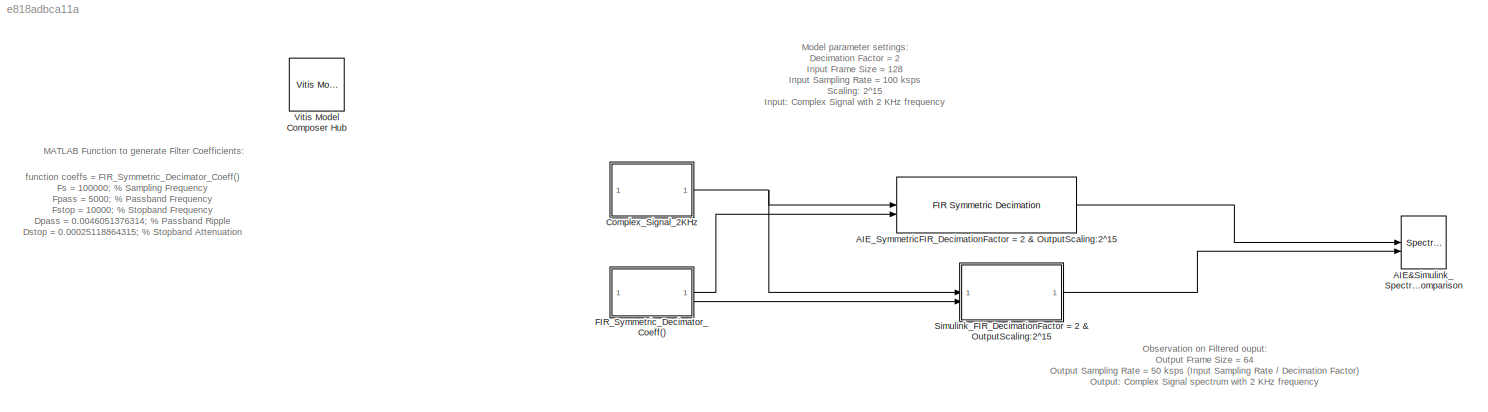
MODEL slx_e818adbca11a
KIND model
CONFIG AbsTol = auto
CONFIG EnableMultiTasking = off
CONFIG FixedStep = auto
CONFIG MaxStep = auto
CONFIG MinStep = auto
CONFIG PostLoadFcn = Fs = 100000;  % Sampling Frequency\nFpass = 5000;              % Passband Frequency\nFstop = 10000;             % Stopband Frequency\nDpass = 0.0046051376314;   % Passband Ripple\nDstop = 0.00025118864315;  % Stopband Attenuation\ndens  = 16;                % Density Factor\n% Calculate the order from the parameters using FIRPMORD.\n[N, Fo, Ao, W] = firpmord([Fpass, Fstop]/(Fs/2), [1 0], [Dpass, Dstop]);...<+93ch>
CONFIG RelTol = 1e-3
CONFIG SampleTimeConstraint = Unconstrained
CONFIG SolverName = VariableStepAuto
CONFIG StartTime = 0.0
CONFIG StopTime = 1
BLOCK [SpectrumAnalyzer] AIE&Simulink_Spectrum_Comparison
  AllowFFTLengthLessThanSamplesPerUpdate = on
  AveragingMethod = Exponential
  ChannelNames = [""]
  DefaultConfigurationName = spbscopes.SpectrumAnalyzerBlockCfg
  NumInputPorts = 2
  ScopeSpecificationString = spbscopes.SpectrumAnalyzerBlockCfg('CurrentConfiguration', extmgr.ConfigurationSet(extmgr.Configuration('Core','General UI',true,'FigureColor',[0.16        0.16        0.16]),extmgr.Configuration('Visuals','Spectrum',true,'Title','','YLabel','','MinYLim','27.0377','MaxYLim','123.9095','Legend',true,'AxesProperties',struct('XGrid',{'on','on'},'YGrid',{'on','on'},'ZGrid',{'on','on'},'Color',{[0 0 0]...<+2399ch>
  ShowLegend = on
  WasSavedAsWebScope = on
BLOCK [Reference] AIE_SymmetricFIR_DecimationFactor = 2 & OutputScaling:2^15   REF=aieDSP/FIR Symmetric Decimation
  SourceBlock = aieDSP/FIR Symmetric Decimation
  SourceType = FIR Symmetric Decimation
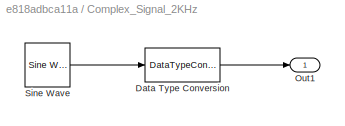
BLOCK [SubSystem] Complex_Signal_2KHz
BLOCK [DataTypeConversion] Complex_Signal_2KHz/Data Type Conversion
  ConvertRealWorld = Stored Integer (SI)
  OutDataTypeStr = int16
  OutMax = [1]
  OutMin = [-1]
  RndMeth = Floor
  SaturateOnIntegerOverflow = off
BLOCK [Outport] Complex_Signal_2KHz/Out1
BLOCK [Reference] Complex_Signal_2KHz/Sine Wave  REF=dspsrcs4/Sine Wave
  SourceBlock = dspsrcs4/Sine Wave
  SourceType = Sine Wave
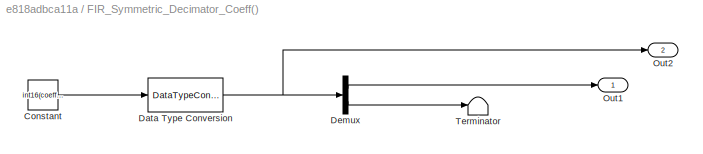
BLOCK [SubSystem] FIR_Symmetric_Decimator_Coeff()
BLOCK [Constant] FIR_Symmetric_Decimator_Coeff()/Constant
  Value = int16(coeffs*2^15)
BLOCK [DataTypeConversion] FIR_Symmetric_Decimator_Coeff()/Data Type Conversion
  ConvertRealWorld = Stored Integer (SI)
  OutDataTypeStr = int16
  OutMax = [1]
  OutMin = [-1]
  RndMeth = Floor
  SaturateOnIntegerOverflow = off
BLOCK [Demux] FIR_Symmetric_Decimator_Coeff()/Demux
  Outputs = 2
BLOCK [Outport] FIR_Symmetric_Decimator_Coeff()/Out1
BLOCK [Outport] FIR_Symmetric_Decimator_Coeff()/Out2
  Port = 2
BLOCK [Terminator] FIR_Symmetric_Decimator_Coeff()/Terminator
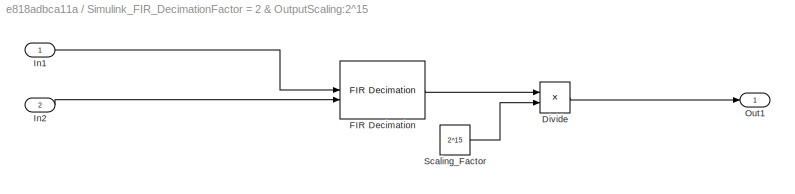
BLOCK [SubSystem] Simulink_FIR_DecimationFactor = 2 & OutputScaling:2^15
BLOCK [Product] Simulink_FIR_DecimationFactor = 2 & OutputScaling:2^15/Divide
  Inputs = */
  OutDataTypeStr = int16
BLOCK [Reference] Simulink_FIR_DecimationFactor = 2 & OutputScaling:2^15/FIR Decimation  REF=dspmlti4/FIR
Decimation
  SourceBlock = dspmlti4/FIR\nDecimation
  SourceType = FIR Decimation
  UserDataPersistent = on
BLOCK [Inport] Simulink_FIR_DecimationFactor = 2 & OutputScaling:2^15/In1
BLOCK [Inport] Simulink_FIR_DecimationFactor = 2 & OutputScaling:2^15/In2
  Port = 2
BLOCK [Outport] Simulink_FIR_DecimationFactor = 2 & OutputScaling:2^15/Out1
BLOCK [Constant] Simulink_FIR_DecimationFactor = 2 & OutputScaling:2^15/Scaling_Factor
  OutDataTypeStr = int32
  Value = 2^15
BLOCK [Reference] Vitis Model Composer Hub  REF=vmcUtilities/Vitis Model Composer Hub
  SourceBlock = vmcUtilities/Vitis Model Composer Hub
  SourceType = VMC Hub
  Tag = genX
  UserDataPersistent = on
ANNOTATION (root): function coeffs = FIR_Symmetric_Decimator_Coeff() Fs = 100000; % Sampling Frequency Fpass = 5000; % Passband Frequency Fstop = 10000; % Stopband Frequency Dpass = 0.0046051376314; % Passband Ripple Dstop = 0.00025118864315; % Stopband Attenuation dens = 16; % Density Factor % Calculate the order from the parameters using FIRPMORD. [N, Fo, Ao, W] = firpmord([Fpass, Fstop]/(Fs/2), [1 0], [Dpass, Dst...<+102ch>
ANNOTATION (root): MATLAB Function to generate Filter Coefficients:
ANNOTATION (root): Model parameter settings: Decimation Factor = 2 Input Frame Size = 128 Input Sampling Rate = 100 ksps Scaling: 2^15 Input: Complex Signal with 2 KHz frequency
ANNOTATION (root): Observation on Filtered ouput: Output Frame Size = 64 Output Sampling Rate = 50 ksps (Input Sampling Rate / Decimation Factor) Output: Complex Signal spectrum with 2 KHz frequency
LINE AIE_SymmetricFIR_DecimationFactor = 2 & OutputScaling:2^15 :1 -> AIE&Simulink_Spectrum_Comparison:1
LINE Complex_Signal_2KHz/Data Type Conversion:1 -> Complex_Signal_2KHz/Out1:1
LINE Complex_Signal_2KHz/Sine Wave:1 -> Complex_Signal_2KHz/Data Type Conversion:1
NET Complex_Signal_2KHz:1 -> AIE_SymmetricFIR_DecimationFactor = 2 & OutputScaling:2^15 :1, Simulink_FIR_DecimationFactor = 2 & OutputScaling:2^15:1
LINE FIR_Symmetric_Decimator_Coeff()/Constant:1 -> FIR_Symmetric_Decimator_Coeff()/Data Type Conversion:1
NET FIR_Symmetric_Decimator_Coeff()/Data Type Conversion:1 -> FIR_Symmetric_Decimator_Coeff()/Demux:1, FIR_Symmetric_Decimator_Coeff()/Out2:1
LINE FIR_Symmetric_Decimator_Coeff()/Demux:1 -> FIR_Symmetric_Decimator_Coeff()/Out1:1
LINE FIR_Symmetric_Decimator_Coeff()/Demux:2 -> FIR_Symmetric_Decimator_Coeff()/Terminator:1
LINE FIR_Symmetric_Decimator_Coeff():1 -> AIE_SymmetricFIR_DecimationFactor = 2 & OutputScaling:2^15 :2
LINE FIR_Symmetric_Decimator_Coeff():2 -> Simulink_FIR_DecimationFactor = 2 & OutputScaling:2^15:2
LINE Simulink_FIR_DecimationFactor = 2 & OutputScaling:2^15/Divide:1 -> Simulink_FIR_DecimationFactor = 2 & OutputScaling:2^15/Out1:1
LINE Simulink_FIR_DecimationFactor = 2 & OutputScaling:2^15/FIR Decimation:1 -> Simulink_FIR_DecimationFactor = 2 & OutputScaling:2^15/Divide:1
LINE Simulink_FIR_DecimationFactor = 2 & OutputScaling:2^15/In1:1 -> Simulink_FIR_DecimationFactor = 2 & OutputScaling:2^15/FIR Decimation:1
LINE Simulink_FIR_DecimationFactor = 2 & OutputScaling:2^15/In2:1 -> Simulink_FIR_DecimationFactor = 2 & OutputScaling:2^15/FIR Decimation:2
LINE Simulink_FIR_DecimationFactor = 2 & OutputScaling:2^15/Scaling_Factor:1 -> Simulink_FIR_DecimationFactor = 2 & OutputScaling:2^15/Divide:2
LINE Simulink_FIR_DecimationFactor = 2 & OutputScaling:2^15:1 -> AIE&Simulink_Spectrum_Comparison:2
note: NET lines group one-source signal fan-out (src -> all destinations, sorted); 1:1 wires keep LINE
